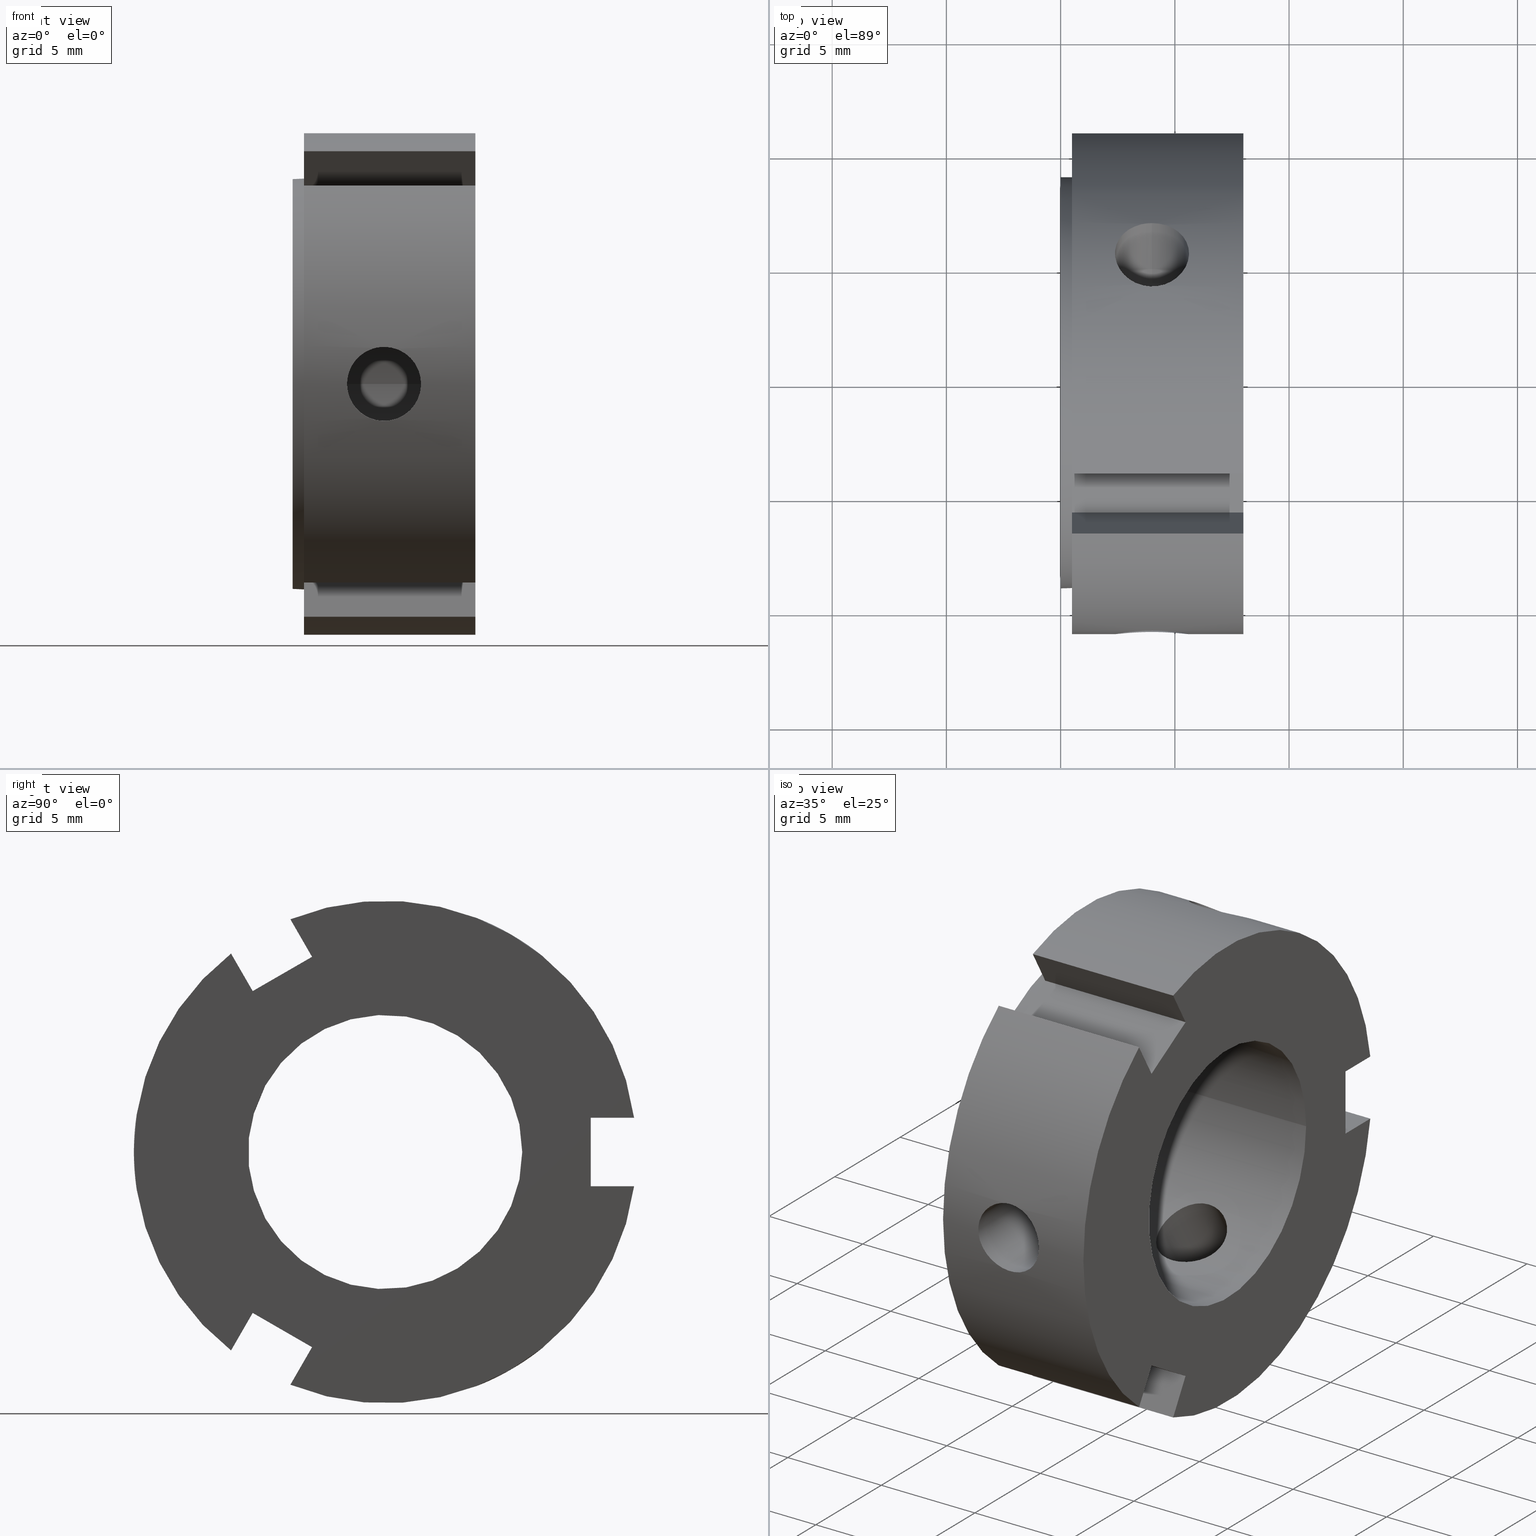
[diagram: canonical four-view strip — front | top / right | iso, engineering-drawing reading convention]
A machine part, canonical four-view strip (front | top / right | iso — engineering-drawing reading convention). The complete STEP part file that produces these views, byte-faithful:
ISO-10303-21;
HEADER;
/****************************************************************
 * Generated by software with PDE/Lib inside                    *
 * PDElib Version v51a, created Thu 01/14/2010                  *
 * ITI Transcendata (http://www.transcendata.com/)              *
 ****************************************************************/
FILE_DESCRIPTION((''),'2;1');
FILE_NAME('\\\\CAD-SVN\\cad-svn\\\X2\628088538AB2\X0\\\FKD\X2\88FD4F5C\X0\SP\\\X2\90E854C130E930A430D630E930EA\X0\\\HP \X2\30A230C330D730C730FC30C87528\X0\CAD\X2\30C730FC30BFFF0867007D42FF09\X0\\\3D data\\ZMT\\FKD ZMT 12.stp','2014-07-16T14:42:57',('fkd-ct1n'),(''),'Autodesk Inventor 2011','Autodesk Inventor 2011','');
FILE_SCHEMA(('AUTOMOTIVE_DESIGN { 1 0 10303 214 1 1 1 1 }'));
ENDSEC;
DATA;
#5=APPLICATION_CONTEXT('automotive design');
#6=APPLICATION_PROTOCOL_DEFINITION('International Standard','automotive_design',2001,#5);
#7=PRODUCT_CONTEXT('',#5,'mechanical');
#8=PRODUCT('FKD ZMT 12','FKD ZMT 12',$,(#7));
#9=PRODUCT_RELATED_PRODUCT_CATEGORY('part',$,(#8));
#10=PRODUCT_DEFINITION_FORMATION('',$,#8);
#11=PRODUCT_DEFINITION_CONTEXT('part definition',#5,'design');
#12=PRODUCT_DEFINITION('',$,#10,#11);
#18=(NAMED_UNIT(*)PLANE_ANGLE_UNIT()SI_UNIT($,.RADIAN.));
#19=DIMENSIONAL_EXPONENTS(0.0,0.0,0.0,0.0,0.0,0.0,0.0);
#20=PLANE_ANGLE_MEASURE_WITH_UNIT(PLANE_ANGLE_MEASURE(0.017453292500000),#18);
#24=(CONVERSION_BASED_UNIT('DEGREE',#20)NAMED_UNIT(#19)PLANE_ANGLE_UNIT());
#28=(NAMED_UNIT(*)SI_UNIT($,.STERADIAN.)SOLID_ANGLE_UNIT());
#32=(LENGTH_UNIT()NAMED_UNIT(*)SI_UNIT(.MILLI.,.METRE.));
#34=UNCERTAINTY_MEASURE_WITH_UNIT(LENGTH_MEASURE(0.010000000000000),#32,'DISTANCE_ACCURACY_VALUE','');
#36=(GEOMETRIC_REPRESENTATION_CONTEXT(3)GLOBAL_UNCERTAINTY_ASSIGNED_CONTEXT((#34))GLOBAL_UNIT_ASSIGNED_CONTEXT((#24,#28,#32))REPRESENTATION_CONTEXT('None','None'));
#37=AXIS2_PLACEMENT_3D('',#38,#39,#40);
#38=CARTESIAN_POINT('',(0.0,0.0,0.0));
#39=DIRECTION('',(0.0,0.0,1.0));
#40=DIRECTION('',(1.0,0.0,0.0));
#41=SHAPE_REPRESENTATION('',(#37),#36);
#42=PRODUCT_DEFINITION_SHAPE('','',#12);
#43=SHAPE_DEFINITION_REPRESENTATION(#42,#41);
#49=(NAMED_UNIT(*)PLANE_ANGLE_UNIT()SI_UNIT($,.RADIAN.));
#50=DIMENSIONAL_EXPONENTS(0.0,0.0,0.0,0.0,0.0,0.0,0.0);
#51=PLANE_ANGLE_MEASURE_WITH_UNIT(PLANE_ANGLE_MEASURE(0.017453292500000),#49);
#55=(CONVERSION_BASED_UNIT('DEGREE',#51)NAMED_UNIT(#50)PLANE_ANGLE_UNIT());
#59=(NAMED_UNIT(*)SI_UNIT($,.STERADIAN.)SOLID_ANGLE_UNIT());
#63=(LENGTH_UNIT()NAMED_UNIT(*)SI_UNIT(.MILLI.,.METRE.));
#65=UNCERTAINTY_MEASURE_WITH_UNIT(LENGTH_MEASURE(0.000001000000000),#63,'DISTANCE_ACCURACY_VALUE','');
#67=(GEOMETRIC_REPRESENTATION_CONTEXT(3)GLOBAL_UNCERTAINTY_ASSIGNED_CONTEXT((#65))GLOBAL_UNIT_ASSIGNED_CONTEXT((#55,#59,#63))REPRESENTATION_CONTEXT('','3D'));
#68=CARTESIAN_POINT('',(7.999999999999996,-5.799038105676662,-7.044228634059944));
#69=DIRECTION('',(0.0,-0.866025403784438,0.500000000000000));
#70=DIRECTION('',(-1.0,0.0,0.0));
#71=AXIS2_PLACEMENT_3D('',#68,#69,#70);
#72=PLANE('',#71);
#73=CARTESIAN_POINT('',(0.499999999999998,-5.799038105676662,-7.044228634059944));
#74=VERTEX_POINT('',#73);
#75=CARTESIAN_POINT('',(0.499999999999998,-6.747661785102503,-8.687293044088433));
#76=VERTEX_POINT('',#75);
#77=CARTESIAN_POINT('',(0.499999999999998,-5.799038105676662,-7.044228634059944));
#78=DIRECTION('',(0.0,-0.500000000000001,-0.866025403784438));
#79=VECTOR('',#78,1.897247358851684);
#80=LINE('',#77,#79);
#81=EDGE_CURVE('',#74,#76,#80,.T.);
#82=ORIENTED_EDGE('',*,*,#81,.F.);
#83=CARTESIAN_POINT('',(7.999999999999996,-5.799038105676662,-7.044228634059944));
#84=VERTEX_POINT('',#83);
#85=CARTESIAN_POINT('',(7.999999999999996,-5.799038105676662,-7.044228634059944));
#86=DIRECTION('',(-1.0,0.0,0.0));
#87=VECTOR('',#86,7.499999999999998);
#88=LINE('',#85,#87);
#89=EDGE_CURVE('',#84,#74,#88,.T.);
#90=ORIENTED_EDGE('',*,*,#89,.F.);
#91=CARTESIAN_POINT('',(7.999999999999996,-6.747661785102503,-8.687293044088431));
#92=VERTEX_POINT('',#91);
#93=CARTESIAN_POINT('',(7.999999999999996,-6.747661785102503,-8.687293044088431));
#94=DIRECTION('',(0.0,0.500000000000000,0.866025403784438));
#95=VECTOR('',#94,1.897247358851682);
#96=LINE('',#93,#95);
#97=EDGE_CURVE('',#92,#84,#96,.T.);
#98=ORIENTED_EDGE('',*,*,#97,.F.);
#99=CARTESIAN_POINT('',(0.499999999999998,-6.747661785102503,-8.687293044088431));
#100=DIRECTION('',(1.0,0.0,0.0));
#101=VECTOR('',#100,7.499999999999998);
#102=LINE('',#99,#101);
#103=EDGE_CURVE('',#76,#92,#102,.T.);
#104=ORIENTED_EDGE('',*,*,#103,.F.);
#105=EDGE_LOOP('',(#82,#90,#98,#104));
#106=FACE_OUTER_BOUND('',#105,.T.);
#107=ADVANCED_FACE('',(#106),#72,.F.);
#108=CARTESIAN_POINT('',(7.999999999999996,-4.200961894323346,-10.276279441628823));
#109=DIRECTION('',(0.0,0.866025403784438,-0.500000000000001));
#110=DIRECTION('',(1.0,0.0,0.0));
#111=AXIS2_PLACEMENT_3D('',#108,#109,#110);
#112=PLANE('',#111);
#113=CARTESIAN_POINT('',(0.499999999999998,-4.149585573749189,-10.187293044088435));
#114=VERTEX_POINT('',#113);
#115=CARTESIAN_POINT('',(0.499999999999998,-3.200961894323347,-8.544228634059948));
#116=VERTEX_POINT('',#115);
#117=CARTESIAN_POINT('',(0.499999999999998,-4.149585573749190,-10.187293044088436));
#118=DIRECTION('',(0.0,0.500000000000000,0.866025403784438));
#119=VECTOR('',#118,1.897247358851683);
#120=LINE('',#117,#119);
#121=EDGE_CURVE('',#114,#116,#120,.T.);
#122=ORIENTED_EDGE('',*,*,#121,.F.);
#123=CARTESIAN_POINT('',(7.999999999999996,-4.149585573749189,-10.187293044088435));
#124=VERTEX_POINT('',#123);
#125=CARTESIAN_POINT('',(7.999999999999996,-4.149585573749187,-10.187293044088433));
#126=DIRECTION('',(-1.0,0.0,0.0));
#127=VECTOR('',#126,7.499999999999998);
#128=LINE('',#125,#127);
#129=EDGE_CURVE('',#124,#114,#128,.T.);
#130=ORIENTED_EDGE('',*,*,#129,.F.);
#131=CARTESIAN_POINT('',(7.999999999999996,-3.200961894323347,-8.544228634059948));
#132=VERTEX_POINT('',#131);
#133=CARTESIAN_POINT('',(7.999999999999996,-3.200961894323347,-8.544228634059950));
#134=DIRECTION('',(0.0,-0.500000000000001,-0.866025403784438));
#135=VECTOR('',#134,1.897247358851682);
#136=LINE('',#133,#135);
#137=EDGE_CURVE('',#132,#124,#136,.T.);
#138=ORIENTED_EDGE('',*,*,#137,.F.);
#139=CARTESIAN_POINT('',(7.999999999999996,-3.200961894323347,-8.544228634059948));
#140=DIRECTION('',(-1.0,0.0,0.0));
#141=VECTOR('',#140,7.499999999999998);
#142=LINE('',#139,#141);
#143=EDGE_CURVE('',#132,#116,#142,.T.);
#144=ORIENTED_EDGE('',*,*,#143,.T.);
#145=EDGE_LOOP('',(#122,#130,#138,#144));
#146=FACE_OUTER_BOUND('',#145,.T.);
#147=ADVANCED_FACE('',(#146),#112,.F.);
#148=CARTESIAN_POINT('',(7.999999999999996,-3.200961894323347,-8.544228634059948));
#149=DIRECTION('',(0.0,0.500000000000001,0.866025403784438));
#150=DIRECTION('',(0.0,-0.866025403784438,0.500000000000000));
#151=AXIS2_PLACEMENT_3D('',#148,#149,#150);
#152=PLANE('',#151);
#153=CARTESIAN_POINT('',(0.499999999999998,-4.500000000000004,-7.794228634059946));
#154=VERTEX_POINT('',#153);
#155=CARTESIAN_POINT('',(0.499999999999998,-3.200961894323350,-8.544228634059950));
#156=DIRECTION('',(0.0,-0.866025403784438,0.500000000000001));
#157=VECTOR('',#156,1.500000000000001);
#158=LINE('',#155,#157);
#159=EDGE_CURVE('',#116,#154,#158,.T.);
#160=ORIENTED_EDGE('',*,*,#159,.F.);
#161=ORIENTED_EDGE('',*,*,#143,.F.);
#162=CARTESIAN_POINT('',(7.999999999999996,-5.799038105676664,-7.044228634059948));
#163=DIRECTION('',(0.0,0.866025403784438,-0.500000000000001));
#164=VECTOR('',#163,3.000000000000000);
#165=LINE('',#162,#164);
#166=EDGE_CURVE('',#84,#132,#165,.T.);
#167=ORIENTED_EDGE('',*,*,#166,.F.);
#168=ORIENTED_EDGE('',*,*,#89,.T.);
#169=CARTESIAN_POINT('',(0.499999999999998,-4.500000000000007,-7.794228634059948));
#170=DIRECTION('',(0.0,-0.866025403784438,0.500000000000000));
#171=VECTOR('',#170,1.499999999999999);
#172=LINE('',#169,#171);
#173=EDGE_CURVE('',#154,#74,#172,.T.);
#174=ORIENTED_EDGE('',*,*,#173,.F.);
#175=EDGE_LOOP('',(#160,#161,#167,#168,#174));
#176=FACE_OUTER_BOUND('',#175,.T.);
#177=ADVANCED_FACE('',(#176),#152,.F.);
#178=CARTESIAN_POINT('',(3.999999999999996,16.027238080021299,27.759990659599517));
#179=DIRECTION('',(0.0,-0.500000000000001,-0.866025403784438));
#180=DIRECTION('',(-1.0,0.0,0.0));
#181=AXIS2_PLACEMENT_3D('',#178,#179,#180);
#182=CYLINDRICAL_SURFACE('',#181,1.621000000000000);
#183=CARTESIAN_POINT('',(3.999999999999996,6.843780281354484,8.611775163143978));
#184=VERTEX_POINT('',#183);
#185=CARTESIAN_POINT('',(3.999999999999996,6.843780281354483,8.611775163143978));
#186=CARTESIAN_POINT('',(4.203857230095092,6.843780281354483,8.611775163143978));
#187=CARTESIAN_POINT('',(4.421096422425316,6.811605609383767,8.637650585633573));
#188=CARTESIAN_POINT('',(4.820387515019100,6.679632714814055,8.740107856688494));
#189=CARTESIAN_POINT('',(5.002465229547891,6.579679271757774,8.816388886074458));
#190=CARTESIAN_POINT('',(5.289972621900516,6.345751955535164,8.986229673803914));
#191=CARTESIAN_POINT('',(5.414677187542505,6.196071175604074,9.091132402150105));
#192=CARTESIAN_POINT('',(5.580199034970113,5.861556254706977,9.310324625808585));
#193=CARTESIAN_POINT('',(5.620999999999996,5.676542674652554,9.424352480894713));
#194=CARTESIAN_POINT('',(5.620999999999996,5.323457325347452,9.628206402362929));
#195=CARTESIAN_POINT('',(5.580199034970113,5.132199516076602,9.731418935192099));
#196=CARTESIAN_POINT('',(5.414677187542505,4.775116021627809,9.911521242804689));
#197=CARTESIAN_POINT('',(5.289972621900514,4.609427203988165,9.988697236510184));
#198=CARTESIAN_POINT('',(5.002465229547890,4.345377109104392,10.106363841133351));
#199=CARTESIAN_POINT('',(4.820387515019100,4.229339078301181,10.154785547322831));
#200=CARTESIAN_POINT('',(4.421096422425315,4.074622031480335,10.217848791103705));
#201=CARTESIAN_POINT('',(4.203857230095093,4.036125922285328,10.232775163143980));
#202=CARTESIAN_POINT('',(3.796142769904900,4.036125922285328,10.232775163143980));
#203=CARTESIAN_POINT('',(3.578903577574677,4.074622031480335,10.217848791103705));
#204=CARTESIAN_POINT('',(3.179612484980892,4.229339078301181,10.154785547322831));
#205=CARTESIAN_POINT('',(2.997534770452102,4.345377109104392,10.106363841133351));
#206=CARTESIAN_POINT('',(2.710027378099477,4.609427203988166,9.988697236510184));
#207=CARTESIAN_POINT('',(2.585322812457488,4.775116021627809,9.911521242804689));
#208=CARTESIAN_POINT('',(2.419800965029880,5.132199516076602,9.731418935192099));
#209=CARTESIAN_POINT('',(2.378999999999996,5.323457325347452,9.628206402362929));
#210=CARTESIAN_POINT('',(2.378999999999996,5.676542674652554,9.424352480894713));
#211=CARTESIAN_POINT('',(2.419800965029880,5.861556254706977,9.310324625808585));
#212=CARTESIAN_POINT('',(2.585322812457487,6.196071175604075,9.091132402150105));
#213=CARTESIAN_POINT('',(2.710027378099476,6.345751955535164,8.986229673803914));
#214=CARTESIAN_POINT('',(2.997534770452100,6.579679271757774,8.816388886074458));
#215=CARTESIAN_POINT('',(3.179612484980892,6.679632714814055,8.740107856688494));
#216=CARTESIAN_POINT('',(3.578903577574677,6.811605609383767,8.637650585633573));
#217=CARTESIAN_POINT('',(3.796142769904900,6.843780281354483,8.611775163143978));
#218=CARTESIAN_POINT('',(3.999999999999995,6.843780281354483,8.611775163143978));
#219=B_SPLINE_CURVE_WITH_KNOTS('',3,(#185,#186,#187,#188,#189,#190,#191,#192,#193,#194,#195,#196,#197,#198,#199,#200,#201,#202,#203,#204,#205,#206,#207,#208,#209,#210,#211,#212,#213,#214,#215,#216,#217,#218),.UNSPECIFIED.,.T.,.U.,(4,2,2,2,2,2,2,2,2,2,2,2,2,2,2,2,4),(0.0,0.061157169028529,0.122314338057058,0.183470514497522,0.244626690937986,0.305782867378451,0.366939043818915,0.428096212847444,0.489253381875973,0.550410550904502,0.611567719933030,0.672723896373495,0.733880072813959,0.795036249254423,0.856192425694888,0.917349594723416,0.978506763751945),.UNSPECIFIED.);
#220=EDGE_CURVE('',#184,#184,#219,.T.);
#221=ORIENTED_EDGE('',*,*,#220,.F.);
#222=EDGE_LOOP('',(#221));
#223=FACE_OUTER_BOUND('',#222,.T.);
#224=CARTESIAN_POINT('',(3.999999999999996,4.292267892099059,4.192426068812130));
#225=VERTEX_POINT('',#224);
#226=CARTESIAN_POINT('',(3.999999999999996,4.292267892099056,4.192426068812130));
#227=CARTESIAN_POINT('',(3.795343162067284,4.292267892099056,4.192426068812130));
#228=CARTESIAN_POINT('',(3.577785041927256,4.262671031748758,4.223382362895078));
#229=CARTESIAN_POINT('',(3.178732228014614,4.140492128349759,4.343230089221864));
#230=CARTESIAN_POINT('',(2.997142959961233,4.047609725213063,4.431499404142869));
#231=CARTESIAN_POINT('',(2.710444476162087,3.827220333200359,4.623170747325942));
#232=CARTESIAN_POINT('',(2.585849816208566,3.684708021319158,4.739533514031053));
#233=CARTESIAN_POINT('',(2.420100173381673,3.359872345713433,4.975088838506332));
#234=CARTESIAN_POINT('',(2.378999999999996,3.177203873530821,5.093843718622166));
#235=CARTESIAN_POINT('',(2.378999999999996,2.822796126469186,5.298461126791092));
#236=CARTESIAN_POINT('',(2.420100173381671,2.628617147374191,5.397279224113808));
#237=CARTESIAN_POINT('',(2.585849816208563,2.262202414579049,5.560817509006207));
#238=CARTESIAN_POINT('',(2.710444476162087,2.090173146617182,5.626055408094820));
#239=CARTESIAN_POINT('',(2.997142959961233,1.813986198236802,5.721082548710895));
#240=CARTESIAN_POINT('',(3.178732228014613,1.691101527572212,5.757386411931321));
#241=CARTESIAN_POINT('',(3.577785041927257,1.526220900287910,5.803272582917986));
#242=CARTESIAN_POINT('',(3.795343162067284,1.484613533029904,5.813426068812132));
#243=CARTESIAN_POINT('',(4.204656837932708,1.484613533029904,5.813426068812132));
#244=CARTESIAN_POINT('',(4.422214958072735,1.526220900287910,5.803272582917986));
#245=CARTESIAN_POINT('',(4.821267771985379,1.691101527572212,5.757386411931321));
#246=CARTESIAN_POINT('',(5.002857040038759,1.813986198236802,5.721082548710895));
#247=CARTESIAN_POINT('',(5.289555523837905,2.090173146617182,5.626055408094821));
#248=CARTESIAN_POINT('',(5.414150183791428,2.262202414579049,5.560817509006207));
#249=CARTESIAN_POINT('',(5.579899826618321,2.628617147374190,5.397279224113808));
#250=CARTESIAN_POINT('',(5.620999999999996,2.822796126469185,5.298461126791092));
#251=CARTESIAN_POINT('',(5.620999999999996,3.177203873530821,5.093843718622166));
#252=CARTESIAN_POINT('',(5.579899826618319,3.359872345713433,4.975088838506333));
#253=CARTESIAN_POINT('',(5.414150183791425,3.684708021319158,4.739533514031053));
#254=CARTESIAN_POINT('',(5.289555523837906,3.827220333200359,4.623170747325942));
#255=CARTESIAN_POINT('',(5.002857040038760,4.047609725213063,4.431499404142869));
#256=CARTESIAN_POINT('',(4.821267771985379,4.140492128349759,4.343230089221864));
#257=CARTESIAN_POINT('',(4.422214958072736,4.262671031748758,4.223382362895078));
#258=CARTESIAN_POINT('',(4.204656837932708,4.292267892099056,4.192426068812130));
#259=CARTESIAN_POINT('',(3.999999999999996,4.292267892099056,4.192426068812130));
#260=B_SPLINE_CURVE_WITH_KNOTS('',3,(#226,#227,#228,#229,#230,#231,#232,#233,#234,#235,#236,#237,#238,#239,#240,#241,#242,#243,#244,#245,#246,#247,#248,#249,#250,#251,#252,#253,#254,#255,#256,#257,#258,#259),.UNSPECIFIED.,.T.,.U.,(4,2,2,2,2,2,2,2,2,2,2,2,2,2,2,2,4),(0.0,0.061397051379813,0.122794102759627,0.184179325210304,0.245564547660981,0.306949770111659,0.368334992562336,0.429732043942149,0.491129095321963,0.552526146701776,0.613923198081590,0.675308420532267,0.736693642982944,0.798078865433622,0.859464087884299,0.920861139264112,0.982258190643926),.UNSPECIFIED.);
#261=EDGE_CURVE('',#225,#225,#260,.T.);
#262=ORIENTED_EDGE('',*,*,#261,.F.);
#263=EDGE_LOOP('',(#262));
#264=FACE_BOUND('',#263,.T.);
#265=ADVANCED_FACE('',(#223,#264),#182,.F.);
#266=CARTESIAN_POINT('',(7.999999999999996,-3.200961894323340,8.544228634059948));
#267=DIRECTION('',(0.0,0.866025403784439,0.500000000000000));
#268=DIRECTION('',(-1.0,0.0,0.0));
#269=AXIS2_PLACEMENT_3D('',#266,#267,#268);
#270=PLANE('',#269);
#271=CARTESIAN_POINT('',(0.499999999999998,-3.200961894323340,8.544228634059948));
#272=VERTEX_POINT('',#271);
#273=CARTESIAN_POINT('',(0.499999999999998,-4.149585573749180,10.187293044088436));
#274=VERTEX_POINT('',#273);
#275=CARTESIAN_POINT('',(0.499999999999998,-3.200961894323341,8.544228634059950));
#276=DIRECTION('',(0.0,-0.500000000000000,0.866025403784438));
#277=VECTOR('',#276,1.897247358851681);
#278=LINE('',#275,#277);
#279=EDGE_CURVE('',#272,#274,#278,.T.);
#280=ORIENTED_EDGE('',*,*,#279,.F.);
#281=CARTESIAN_POINT('',(7.999999999999996,-3.200961894323340,8.544228634059948));
#282=VERTEX_POINT('',#281);
#283=CARTESIAN_POINT('',(7.999999999999996,-3.200961894323340,8.544228634059948));
#284=DIRECTION('',(-1.0,0.0,0.0));
#285=VECTOR('',#284,7.499999999999998);
#286=LINE('',#283,#285);
#287=EDGE_CURVE('',#282,#272,#286,.T.);
#288=ORIENTED_EDGE('',*,*,#287,.F.);
#289=CARTESIAN_POINT('',(7.999999999999996,-4.149585573749180,10.187293044088436));
#290=VERTEX_POINT('',#289);
#291=CARTESIAN_POINT('',(7.999999999999996,-4.149585573749180,10.187293044088435));
#292=DIRECTION('',(0.0,0.500000000000000,-0.866025403784439));
#293=VECTOR('',#292,1.897247358851681);
#294=LINE('',#291,#293);
#295=EDGE_CURVE('',#290,#282,#294,.T.);
#296=ORIENTED_EDGE('',*,*,#295,.F.);
#297=CARTESIAN_POINT('',(0.499999999999998,-4.149585573749180,10.187293044088435));
#298=DIRECTION('',(1.0,0.0,0.0));
#299=VECTOR('',#298,7.499999999999998);
#300=LINE('',#297,#299);
#301=EDGE_CURVE('',#274,#290,#300,.T.);
#302=ORIENTED_EDGE('',*,*,#301,.F.);
#303=EDGE_LOOP('',(#280,#288,#296,#302));
#304=FACE_OUTER_BOUND('',#303,.T.);
#305=ADVANCED_FACE('',(#304),#270,.F.);
#306=CARTESIAN_POINT('',(7.999999999999996,-6.799038105676656,8.776279441628827));
#307=DIRECTION('',(0.0,-0.866025403784439,-0.500000000000000));
#308=DIRECTION('',(1.0,0.0,0.0));
#309=AXIS2_PLACEMENT_3D('',#306,#307,#308);
#310=PLANE('',#309);
#311=CARTESIAN_POINT('',(0.499999999999998,-6.747661785102497,8.687293044088436));
#312=VERTEX_POINT('',#311);
#313=CARTESIAN_POINT('',(0.499999999999998,-5.799038105676656,7.044228634059949));
#314=VERTEX_POINT('',#313);
#315=CARTESIAN_POINT('',(0.499999999999998,-6.747661785102499,8.687293044088438));
#316=DIRECTION('',(0.0,0.500000000000000,-0.866025403784439));
#317=VECTOR('',#316,1.897247358851682);
#318=LINE('',#315,#317);
#319=EDGE_CURVE('',#312,#314,#318,.T.);
#320=ORIENTED_EDGE('',*,*,#319,.F.);
#321=CARTESIAN_POINT('',(7.999999999999996,-6.747661785102497,8.687293044088436));
#322=VERTEX_POINT('',#321);
#323=CARTESIAN_POINT('',(7.999999999999996,-6.747661785102497,8.687293044088435));
#324=DIRECTION('',(-1.0,0.0,0.0));
#325=VECTOR('',#324,7.499999999999998);
#326=LINE('',#323,#325);
#327=EDGE_CURVE('',#322,#312,#326,.T.);
#328=ORIENTED_EDGE('',*,*,#327,.F.);
#329=CARTESIAN_POINT('',(7.999999999999996,-5.799038105676656,7.044228634059949));
#330=VERTEX_POINT('',#329);
#331=CARTESIAN_POINT('',(7.999999999999996,-5.799038105676658,7.044228634059950));
#332=DIRECTION('',(0.0,-0.500000000000000,0.866025403784439));
#333=VECTOR('',#332,1.897247358851680);
#334=LINE('',#331,#333);
#335=EDGE_CURVE('',#330,#322,#334,.T.);
#336=ORIENTED_EDGE('',*,*,#335,.F.);
#337=CARTESIAN_POINT('',(7.999999999999996,-5.799038105676656,7.044228634059949));
#338=DIRECTION('',(-1.0,0.0,0.0));
#339=VECTOR('',#338,7.499999999999998);
#340=LINE('',#337,#339);
#341=EDGE_CURVE('',#330,#314,#340,.T.);
#342=ORIENTED_EDGE('',*,*,#341,.T.);
#343=EDGE_LOOP('',(#320,#328,#336,#342));
#344=FACE_OUTER_BOUND('',#343,.T.);
#345=ADVANCED_FACE('',(#344),#310,.F.);
#346=CARTESIAN_POINT('',(7.999999999999996,-5.799038105676656,7.044228634059949));
#347=DIRECTION('',(0.0,0.500000000000000,-0.866025403784439));
#348=DIRECTION('',(0.0,0.866025403784439,0.500000000000000));
#349=AXIS2_PLACEMENT_3D('',#346,#347,#348);
#350=PLANE('',#349);
#351=CARTESIAN_POINT('',(0.499999999999998,-4.499999999999998,7.794228634059948));
#352=VERTEX_POINT('',#351);
#353=CARTESIAN_POINT('',(0.499999999999999,-5.799038105676658,7.044228634059950));
#354=DIRECTION('',(0.0,0.866025403784439,0.500000000000000));
#355=VECTOR('',#354,1.500000000000000);
#356=LINE('',#353,#355);
#357=EDGE_CURVE('',#314,#352,#356,.T.);
#358=ORIENTED_EDGE('',*,*,#357,.F.);
#359=ORIENTED_EDGE('',*,*,#341,.F.);
#360=CARTESIAN_POINT('',(7.999999999999996,-3.200961894323341,8.544228634059950));
#361=DIRECTION('',(0.0,-0.866025403784439,-0.500000000000000));
#362=VECTOR('',#361,2.999999999999999);
#363=LINE('',#360,#362);
#364=EDGE_CURVE('',#282,#330,#363,.T.);
#365=ORIENTED_EDGE('',*,*,#364,.F.);
#366=ORIENTED_EDGE('',*,*,#287,.T.);
#367=CARTESIAN_POINT('',(0.499999999999999,-4.500000000000000,7.794228634059949));
#368=DIRECTION('',(0.0,0.866025403784439,0.500000000000000));
#369=VECTOR('',#368,1.500000000000001);
#370=LINE('',#367,#369);
#371=EDGE_CURVE('',#352,#272,#370,.T.);
#372=ORIENTED_EDGE('',*,*,#371,.F.);
#373=EDGE_LOOP('',(#358,#359,#365,#366,#372));
#374=FACE_OUTER_BOUND('',#373,.T.);
#375=ADVANCED_FACE('',(#374),#350,.F.);
#376=CARTESIAN_POINT('',(3.999999999999996,16.027238080021277,-27.759990659599527));
#377=DIRECTION('',(0.0,-0.500000000000000,0.866025403784439));
#378=DIRECTION('',(-1.0,0.0,0.0));
#379=AXIS2_PLACEMENT_3D('',#376,#377,#378);
#380=CYLINDRICAL_SURFACE('',#379,1.621000000000000);
#381=CARTESIAN_POINT('',(3.999999999999996,4.036125922285326,-10.232775163143984));
#382=VERTEX_POINT('',#381);
#383=CARTESIAN_POINT('',(3.999999999999995,4.036125922285327,-10.232775163143980));
#384=CARTESIAN_POINT('',(4.203857230095092,4.036125922285327,-10.232775163143980));
#385=CARTESIAN_POINT('',(4.421096422425316,4.074622031480329,-10.217848791103707));
#386=CARTESIAN_POINT('',(4.820387515019101,4.229339078301176,-10.154785547322833));
#387=CARTESIAN_POINT('',(5.002465229547891,4.345377109104388,-10.106363841133351));
#388=CARTESIAN_POINT('',(5.289972621900514,4.609427203988162,-9.988697236510182));
#389=CARTESIAN_POINT('',(5.414677187542505,4.775116021627805,-9.911521242804691));
#390=CARTESIAN_POINT('',(5.580199034970112,5.132199516076598,-9.731418935192103));
#391=CARTESIAN_POINT('',(5.620999999999996,5.323457325347444,-9.628206402362929));
#392=CARTESIAN_POINT('',(5.620999999999996,5.676542674652547,-9.424352480894715));
#393=CARTESIAN_POINT('',(5.580199034970113,5.861556254706970,-9.310324625808589));
#394=CARTESIAN_POINT('',(5.414677187542505,6.196071175604069,-9.091132402150109));
#395=CARTESIAN_POINT('',(5.289972621900514,6.345751955535155,-8.986229673803919));
#396=CARTESIAN_POINT('',(5.002465229547891,6.579679271757765,-8.816388886074464));
#397=CARTESIAN_POINT('',(4.820387515019103,6.679632714814047,-8.740107856688500));
#398=CARTESIAN_POINT('',(4.421096422425317,6.811605609383759,-8.637650585633578));
#399=CARTESIAN_POINT('',(4.203857230095093,6.843780281354476,-8.611775163143983));
#400=CARTESIAN_POINT('',(3.796142769904900,6.843780281354476,-8.611775163143983));
#401=CARTESIAN_POINT('',(3.578903577574675,6.811605609383759,-8.637650585633578));
#402=CARTESIAN_POINT('',(3.179612484980888,6.679632714814047,-8.740107856688500));
#403=CARTESIAN_POINT('',(2.997534770452099,6.579679271757765,-8.816388886074464));
#404=CARTESIAN_POINT('',(2.710027378099476,6.345751955535155,-8.986229673803919));
#405=CARTESIAN_POINT('',(2.585322812457487,6.196071175604068,-9.091132402150109));
#406=CARTESIAN_POINT('',(2.419800965029880,5.861556254706970,-9.310324625808589));
#407=CARTESIAN_POINT('',(2.378999999999996,5.676542674652547,-9.424352480894715));
#408=CARTESIAN_POINT('',(2.378999999999996,5.323457325347444,-9.628206402362929));
#409=CARTESIAN_POINT('',(2.419800965029880,5.132199516076598,-9.731418935192103));
#410=CARTESIAN_POINT('',(2.585322812457487,4.775116021627805,-9.911521242804691));
#411=CARTESIAN_POINT('',(2.710027378099477,4.609427203988162,-9.988697236510182));
#412=CARTESIAN_POINT('',(2.997534770452100,4.345377109104388,-10.106363841133351));
#413=CARTESIAN_POINT('',(3.179612484980890,4.229339078301176,-10.154785547322833));
#414=CARTESIAN_POINT('',(3.578903577574675,4.074622031480329,-10.217848791103707));
#415=CARTESIAN_POINT('',(3.796142769904899,4.036125922285326,-10.232775163143980));
#416=CARTESIAN_POINT('',(3.999999999999995,4.036125922285326,-10.232775163143980));
#417=B_SPLINE_CURVE_WITH_KNOTS('',3,(#383,#384,#385,#386,#387,#388,#389,#390,#391,#392,#393,#394,#395,#396,#397,#398,#399,#400,#401,#402,#403,#404,#405,#406,#407,#408,#409,#410,#411,#412,#413,#414,#415,#416),.UNSPECIFIED.,.T.,.U.,(4,2,2,2,2,2,2,2,2,2,2,2,2,2,2,2,4),(0.0,0.061157169028529,0.122314338057058,0.183470514497522,0.244626690937986,0.305782867378450,0.366939043818914,0.428096212847443,0.489253381875972,0.550410550904501,0.611567719933030,0.672723896373494,0.733880072813958,0.795036249254422,0.856192425694886,0.917349594723415,0.978506763751944),.UNSPECIFIED.);
#418=EDGE_CURVE('',#382,#382,#417,.T.);
#419=ORIENTED_EDGE('',*,*,#418,.F.);
#420=EDGE_LOOP('',(#419));
#421=FACE_OUTER_BOUND('',#420,.T.);
#422=CARTESIAN_POINT('',(3.999999999999996,1.484613533029904,-5.813426068812132));
#423=VERTEX_POINT('',#422);
#424=CARTESIAN_POINT('',(3.999999999999996,1.484613533029904,-5.813426068812132));
#425=CARTESIAN_POINT('',(3.795343162067284,1.484613533029904,-5.813426068812132));
#426=CARTESIAN_POINT('',(3.577785041927255,1.526220900287908,-5.803272582917986));
#427=CARTESIAN_POINT('',(3.178732228014612,1.691101527572211,-5.757386411931321));
#428=CARTESIAN_POINT('',(2.997142959961232,1.813986198236801,-5.721082548710896));
#429=CARTESIAN_POINT('',(2.710444476162087,2.090173146617180,-5.626055408094822));
#430=CARTESIAN_POINT('',(2.585849816208563,2.262202414579048,-5.560817509006208));
#431=CARTESIAN_POINT('',(2.420100173381671,2.628617147374188,-5.397279224113809));
#432=CARTESIAN_POINT('',(2.378999999999996,2.822796126469180,-5.298461126791093));
#433=CARTESIAN_POINT('',(2.378999999999996,3.177203873530814,-5.093843718622169));
#434=CARTESIAN_POINT('',(2.420100173381670,3.359872345713427,-4.975088838506338));
#435=CARTESIAN_POINT('',(2.585849816208563,3.684708021319151,-4.739533514031058));
#436=CARTESIAN_POINT('',(2.710444476162087,3.827220333200351,-4.623170747325948));
#437=CARTESIAN_POINT('',(2.997142959961232,4.047609725213056,-4.431499404142876));
#438=CARTESIAN_POINT('',(3.178732228014609,4.140492128349757,-4.343230089221867));
#439=CARTESIAN_POINT('',(3.577785041927251,4.262671031748757,-4.223382362895080));
#440=CARTESIAN_POINT('',(3.795343162067284,4.292267892099052,-4.192426068812133));
#441=CARTESIAN_POINT('',(4.204656837932708,4.292267892099052,-4.192426068812133));
#442=CARTESIAN_POINT('',(4.422214958072740,4.262671031748757,-4.223382362895080));
#443=CARTESIAN_POINT('',(4.821267771985383,4.140492128349757,-4.343230089221867));
#444=CARTESIAN_POINT('',(5.002857040038760,4.047609725213056,-4.431499404142876));
#445=CARTESIAN_POINT('',(5.289555523837905,3.827220333200351,-4.623170747325948));
#446=CARTESIAN_POINT('',(5.414150183791429,3.684708021319152,-4.739533514031058));
#447=CARTESIAN_POINT('',(5.579899826618321,3.359872345713427,-4.975088838506338));
#448=CARTESIAN_POINT('',(5.620999999999996,3.177203873530814,-5.093843718622169));
#449=CARTESIAN_POINT('',(5.620999999999996,2.822796126469180,-5.298461126791093));
#450=CARTESIAN_POINT('',(5.579899826618321,2.628617147374187,-5.397279224113811));
#451=CARTESIAN_POINT('',(5.414150183791428,2.262202414579046,-5.560817509006211));
#452=CARTESIAN_POINT('',(5.289555523837905,2.090173146617180,-5.626055408094823));
#453=CARTESIAN_POINT('',(5.002857040038760,1.813986198236801,-5.721082548710896));
#454=CARTESIAN_POINT('',(4.821267771985379,1.691101527572211,-5.757386411931321));
#455=CARTESIAN_POINT('',(4.422214958072737,1.526220900287908,-5.803272582917986));
#456=CARTESIAN_POINT('',(4.204656837932708,1.484613533029904,-5.813426068812132));
#457=CARTESIAN_POINT('',(3.999999999999996,1.484613533029904,-5.813426068812132));
#458=B_SPLINE_CURVE_WITH_KNOTS('',3,(#424,#425,#426,#427,#428,#429,#430,#431,#432,#433,#434,#435,#436,#437,#438,#439,#440,#441,#442,#443,#444,#445,#446,#447,#448,#449,#450,#451,#452,#453,#454,#455,#456,#457),.UNSPECIFIED.,.T.,.U.,(4,2,2,2,2,2,2,2,2,2,2,2,2,2,2,2,4),(0.0,0.061397051379814,0.122794102759627,0.184179325210304,0.245564547660981,0.306949770111658,0.368334992562335,0.429732043942149,0.491129095321962,0.552526146701776,0.613923198081589,0.675308420532266,0.736693642982943,0.798078865433620,0.859464087884297,0.920861139264111,0.982258190643924),.UNSPECIFIED.);
#459=EDGE_CURVE('',#423,#423,#458,.T.);
#460=ORIENTED_EDGE('',*,*,#459,.F.);
#461=EDGE_LOOP('',(#460));
#462=FACE_BOUND('',#461,.T.);
#463=ADVANCED_FACE('',(#421,#462),#380,.F.);
#464=CARTESIAN_POINT('',(0.499999999999998,9.999999999999998,0.0));
#465=DIRECTION('',(-1.0,0.0,0.0));
#466=DIRECTION('',(0.0,0.0,1.0));
#467=AXIS2_PLACEMENT_3D('',#464,#465,#466);
#468=PLANE('',#467);
#469=ORIENTED_EDGE('',*,*,#371,.T.);
#470=ORIENTED_EDGE('',*,*,#279,.T.);
#471=CARTESIAN_POINT('',(0.499999999999998,10.897247358851681,1.500000000000000));
#472=VERTEX_POINT('',#471);
#473=CARTESIAN_POINT('',(0.499999999999998,0.0,0.0));
#474=DIRECTION('',(1.0,0.0,0.0));
#475=DIRECTION('',(0.0,1.0,0.0));
#476=AXIS2_PLACEMENT_3D('',#473,#474,#475);
#477=CIRCLE('',#476,10.999999999999996);
#478=EDGE_CURVE('',#472,#274,#477,.T.);
#479=ORIENTED_EDGE('',*,*,#478,.F.);
#480=CARTESIAN_POINT('',(0.499999999999998,9.0,1.500000000000000));
#481=VERTEX_POINT('',#480);
#482=CARTESIAN_POINT('',(0.499999999999998,10.897247358851681,1.500000000000000));
#483=DIRECTION('',(0.0,-1.0,0.0));
#484=VECTOR('',#483,1.897247358851681);
#485=LINE('',#482,#484);
#486=EDGE_CURVE('',#472,#481,#485,.T.);
#487=ORIENTED_EDGE('',*,*,#486,.T.);
#488=CARTESIAN_POINT('',(0.499999999999998,8.999999999999998,0.0));
#489=VERTEX_POINT('',#488);
#490=CARTESIAN_POINT('',(0.499999999999998,9.0,1.500000000000000));
#491=DIRECTION('',(0.0,0.0,-1.0));
#492=VECTOR('',#491,1.500000000000000);
#493=LINE('',#490,#492);
#494=EDGE_CURVE('',#481,#489,#493,.T.);
#495=ORIENTED_EDGE('',*,*,#494,.T.);
#496=CARTESIAN_POINT('',(0.499999999999998,0.0,0.0));
#497=DIRECTION('',(1.0,0.0,0.0));
#498=DIRECTION('',(0.0,1.0,0.0));
#499=AXIS2_PLACEMENT_3D('',#496,#497,#498);
#500=CIRCLE('',#499,8.999999999999998);
#501=EDGE_CURVE('',#489,#352,#500,.T.);
#502=ORIENTED_EDGE('',*,*,#501,.T.);
#503=EDGE_LOOP('',(#469,#470,#479,#487,#495,#502));
#504=FACE_OUTER_BOUND('',#503,.T.);
#505=ADVANCED_FACE('',(#504),#468,.T.);
#506=CARTESIAN_POINT('',(0.499999999999998,9.999999999999998,0.0));
#507=DIRECTION('',(-1.0,0.0,0.0));
#508=DIRECTION('',(0.0,0.0,1.0));
#509=AXIS2_PLACEMENT_3D('',#506,#507,#508);
#510=PLANE('',#509);
#511=ORIENTED_EDGE('',*,*,#173,.T.);
#512=ORIENTED_EDGE('',*,*,#81,.T.);
#513=CARTESIAN_POINT('',(0.499999999999998,0.0,0.0));
#514=DIRECTION('',(1.0,0.0,0.0));
#515=DIRECTION('',(0.0,1.0,0.0));
#516=AXIS2_PLACEMENT_3D('',#513,#514,#515);
#517=CIRCLE('',#516,10.999999999999996);
#518=EDGE_CURVE('',#312,#76,#517,.T.);
#519=ORIENTED_EDGE('',*,*,#518,.F.);
#520=ORIENTED_EDGE('',*,*,#319,.T.);
#521=ORIENTED_EDGE('',*,*,#357,.T.);
#522=CARTESIAN_POINT('',(0.499999999999998,0.0,0.0));
#523=DIRECTION('',(1.0,0.0,0.0));
#524=DIRECTION('',(0.0,1.0,0.0));
#525=AXIS2_PLACEMENT_3D('',#522,#523,#524);
#526=CIRCLE('',#525,8.999999999999998);
#527=EDGE_CURVE('',#352,#154,#526,.T.);
#528=ORIENTED_EDGE('',*,*,#527,.T.);
#529=EDGE_LOOP('',(#511,#512,#519,#520,#521,#528));
#530=FACE_OUTER_BOUND('',#529,.T.);
#531=ADVANCED_FACE('',(#530),#510,.T.);
#532=CARTESIAN_POINT('',(7.999999999999996,8.500000000000000,0.0));
#533=DIRECTION('',(1.0,0.0,0.0));
#534=DIRECTION('',(0.0,0.0,-1.0));
#535=AXIS2_PLACEMENT_3D('',#532,#533,#534);
#536=PLANE('',#535);
#537=ORIENTED_EDGE('',*,*,#97,.T.);
#538=ORIENTED_EDGE('',*,*,#166,.T.);
#539=ORIENTED_EDGE('',*,*,#137,.T.);
#540=CARTESIAN_POINT('',(7.999999999999996,10.897247358851681,-1.500000000000000));
#541=VERTEX_POINT('',#540);
#542=CARTESIAN_POINT('',(7.999999999999996,0.0,0.0));
#543=DIRECTION('',(1.0,0.0,0.0));
#544=DIRECTION('',(0.0,1.0,0.0));
#545=AXIS2_PLACEMENT_3D('',#542,#543,#544);
#546=CIRCLE('',#545,10.999999999999998);
#547=EDGE_CURVE('',#124,#541,#546,.T.);
#548=ORIENTED_EDGE('',*,*,#547,.T.);
#549=CARTESIAN_POINT('',(7.999999999999996,9.0,-1.500000000000000));
#550=VERTEX_POINT('',#549);
#551=CARTESIAN_POINT('',(7.999999999999996,10.897247358851681,-1.500000000000000));
#552=DIRECTION('',(0.0,-1.0,0.0));
#553=VECTOR('',#552,1.897247358851681);
#554=LINE('',#551,#553);
#555=EDGE_CURVE('',#541,#550,#554,.T.);
#556=ORIENTED_EDGE('',*,*,#555,.T.);
#557=CARTESIAN_POINT('',(7.999999999999996,9.0,1.500000000000000));
#558=VERTEX_POINT('',#557);
#559=CARTESIAN_POINT('',(7.999999999999996,9.0,-1.500000000000000));
#560=DIRECTION('',(0.0,0.0,1.0));
#561=VECTOR('',#560,3.000000000000001);
#562=LINE('',#559,#561);
#563=EDGE_CURVE('',#550,#558,#562,.T.);
#564=ORIENTED_EDGE('',*,*,#563,.T.);
#565=CARTESIAN_POINT('',(7.999999999999996,10.897247358851681,1.500000000000000));
#566=VERTEX_POINT('',#565);
#567=CARTESIAN_POINT('',(7.999999999999996,8.999999999999998,1.500000000000000));
#568=DIRECTION('',(0.0,1.0,0.0));
#569=VECTOR('',#568,1.897247358851681);
#570=LINE('',#567,#569);
#571=EDGE_CURVE('',#558,#566,#570,.T.);
#572=ORIENTED_EDGE('',*,*,#571,.T.);
#573=CARTESIAN_POINT('',(7.999999999999996,0.0,0.0));
#574=DIRECTION('',(1.0,0.0,0.0));
#575=DIRECTION('',(0.0,1.0,0.0));
#576=AXIS2_PLACEMENT_3D('',#573,#574,#575);
#577=CIRCLE('',#576,10.999999999999998);
#578=EDGE_CURVE('',#566,#290,#577,.T.);
#579=ORIENTED_EDGE('',*,*,#578,.T.);
#580=ORIENTED_EDGE('',*,*,#295,.T.);
#581=ORIENTED_EDGE('',*,*,#364,.T.);
#582=ORIENTED_EDGE('',*,*,#335,.T.);
#583=CARTESIAN_POINT('',(7.999999999999996,0.0,0.0));
#584=DIRECTION('',(1.0,0.0,0.0));
#585=DIRECTION('',(0.0,1.0,0.0));
#586=AXIS2_PLACEMENT_3D('',#583,#584,#585);
#587=CIRCLE('',#586,10.999999999999998);
#588=EDGE_CURVE('',#322,#92,#587,.T.);
#589=ORIENTED_EDGE('',*,*,#588,.T.);
#590=EDGE_LOOP('',(#537,#538,#539,#548,#556,#564,#572,#579,#580,#581,#582,#589));
#591=FACE_OUTER_BOUND('',#590,.T.);
#592=CARTESIAN_POINT('',(7.999999999999997,6.000000000000001,0.0));
#593=VERTEX_POINT('',#592);
#594=CARTESIAN_POINT('',(7.999999999999997,0.0,0.0));
#595=DIRECTION('',(1.0,0.0,0.0));
#596=DIRECTION('',(0.0,1.0,0.0));
#597=AXIS2_PLACEMENT_3D('',#594,#595,#596);
#598=CIRCLE('',#597,6.000000000000001);
#599=EDGE_CURVE('',#593,#593,#598,.T.);
#600=ORIENTED_EDGE('',*,*,#599,.F.);
#601=EDGE_LOOP('',(#600));
#602=FACE_BOUND('',#601,.T.);
#603=ADVANCED_FACE('',(#591,#602),#536,.T.);
#604=CARTESIAN_POINT('',(4.249999999999997,0.0,0.0));
#605=DIRECTION('',(1.0,0.0,0.0));
#606=DIRECTION('',(0.0,1.0,0.0));
#607=AXIS2_PLACEMENT_3D('',#604,#605,#606);
#608=CYLINDRICAL_SURFACE('',#607,10.999999999999996);
#609=ORIENTED_EDGE('',*,*,#301,.T.);
#610=ORIENTED_EDGE('',*,*,#578,.F.);
#611=CARTESIAN_POINT('',(7.999999999999996,10.897247358851681,1.500000000000000));
#612=DIRECTION('',(-1.0,0.0,0.0));
#613=VECTOR('',#612,7.499999999999998);
#614=LINE('',#611,#613);
#615=EDGE_CURVE('',#566,#472,#614,.T.);
#616=ORIENTED_EDGE('',*,*,#615,.T.);
#617=ORIENTED_EDGE('',*,*,#478,.T.);
#618=EDGE_LOOP('',(#609,#610,#616,#617));
#619=FACE_OUTER_BOUND('',#618,.T.);
#620=ORIENTED_EDGE('',*,*,#220,.T.);
#621=EDGE_LOOP('',(#620));
#622=FACE_BOUND('',#621,.T.);
#623=ADVANCED_FACE('',(#619,#622),#608,.T.);
#624=CARTESIAN_POINT('',(4.249999999999997,0.0,0.0));
#625=DIRECTION('',(1.0,0.0,0.0));
#626=DIRECTION('',(0.0,1.0,0.0));
#627=AXIS2_PLACEMENT_3D('',#624,#625,#626);
#628=CYLINDRICAL_SURFACE('',#627,10.999999999999996);
#629=ORIENTED_EDGE('',*,*,#129,.T.);
#630=CARTESIAN_POINT('',(0.499999999999998,10.897247358851681,-1.500000000000000));
#631=VERTEX_POINT('',#630);
#632=CARTESIAN_POINT('',(0.499999999999998,0.0,0.0));
#633=DIRECTION('',(1.0,0.0,0.0));
#634=DIRECTION('',(0.0,1.0,0.0));
#635=AXIS2_PLACEMENT_3D('',#632,#633,#634);
#636=CIRCLE('',#635,10.999999999999996);
#637=EDGE_CURVE('',#114,#631,#636,.T.);
#638=ORIENTED_EDGE('',*,*,#637,.T.);
#639=CARTESIAN_POINT('',(0.499999999999998,10.897247358851681,-1.500000000000000));
#640=DIRECTION('',(1.0,0.0,0.0));
#641=VECTOR('',#640,7.499999999999998);
#642=LINE('',#639,#641);
#643=EDGE_CURVE('',#631,#541,#642,.T.);
#644=ORIENTED_EDGE('',*,*,#643,.T.);
#645=ORIENTED_EDGE('',*,*,#547,.F.);
#646=EDGE_LOOP('',(#629,#638,#644,#645));
#647=FACE_OUTER_BOUND('',#646,.T.);
#648=ORIENTED_EDGE('',*,*,#418,.T.);
#649=EDGE_LOOP('',(#648));
#650=FACE_BOUND('',#649,.T.);
#651=ADVANCED_FACE('',(#647,#650),#628,.T.);
#652=CARTESIAN_POINT('',(4.249999999999997,0.0,0.0));
#653=DIRECTION('',(1.0,0.0,0.0));
#654=DIRECTION('',(0.0,1.0,0.0));
#655=AXIS2_PLACEMENT_3D('',#652,#653,#654);
#656=CYLINDRICAL_SURFACE('',#655,10.999999999999996);
#657=ORIENTED_EDGE('',*,*,#103,.T.);
#658=ORIENTED_EDGE('',*,*,#588,.F.);
#659=ORIENTED_EDGE('',*,*,#327,.T.);
#660=ORIENTED_EDGE('',*,*,#518,.T.);
#661=EDGE_LOOP('',(#657,#658,#659,#660));
#662=FACE_OUTER_BOUND('',#661,.T.);
#663=CARTESIAN_POINT('',(3.999999999999996,-10.879906203639806,1.621000000000000));
#664=VERTEX_POINT('',#663);
#665=CARTESIAN_POINT('',(3.999999999999995,-10.879906203639806,1.621000000000000));
#666=CARTESIAN_POINT('',(4.203857230095091,-10.879906203639806,1.621000000000000));
#667=CARTESIAN_POINT('',(4.421096422425316,-10.886227640864092,1.580198205470131));
#668=CARTESIAN_POINT('',(4.820387515019101,-10.908971793115224,1.414677690634334));
#669=CARTESIAN_POINT('',(5.002465229547891,-10.925056380862157,1.289974955058892));
#670=CARTESIAN_POINT('',(5.289972621900515,-10.955179159523320,1.002467562706269));
#671=CARTESIAN_POINT('',(5.414677187542505,-10.971187197231876,0.820388840654583));
#672=CARTESIAN_POINT('',(5.580199034970113,-10.993755770783570,0.421094309383514));
#673=CARTESIAN_POINT('',(5.620999999999996,-10.999999999999996,0.203853921468214));
#674=CARTESIAN_POINT('',(5.620999999999996,-10.999999999999996,-0.203853921468214));
#675=CARTESIAN_POINT('',(5.580199034970113,-10.993755770783570,-0.421094309383514));
#676=CARTESIAN_POINT('',(5.414677187542505,-10.971187197231876,-0.820388840654583));
#677=CARTESIAN_POINT('',(5.289972621900515,-10.955179159523320,-1.002467562706268));
#678=CARTESIAN_POINT('',(5.002465229547891,-10.925056380862157,-1.289974955058892));
#679=CARTESIAN_POINT('',(4.820387515019101,-10.908971793115224,-1.414677690634334));
#680=CARTESIAN_POINT('',(4.421096422425316,-10.886227640864092,-1.580198205470131));
#681=CARTESIAN_POINT('',(4.203857230095092,-10.879906203639806,-1.621000000000000));
#682=CARTESIAN_POINT('',(3.796142769904900,-10.879906203639806,-1.621000000000000));
#683=CARTESIAN_POINT('',(3.578903577574676,-10.886227640864092,-1.580198205470131));
#684=CARTESIAN_POINT('',(3.179612484980891,-10.908971793115224,-1.414677690634334));
#685=CARTESIAN_POINT('',(2.997534770452102,-10.925056380862157,-1.289974955058892));
#686=CARTESIAN_POINT('',(2.710027378099478,-10.955179159523320,-1.002467562706269));
#687=CARTESIAN_POINT('',(2.585322812457488,-10.971187197231876,-0.820388840654583));
#688=CARTESIAN_POINT('',(2.419800965029880,-10.993755770783570,-0.421094309383514));
#689=CARTESIAN_POINT('',(2.378999999999996,-10.999999999999996,-0.203853921468214));
#690=CARTESIAN_POINT('',(2.378999999999996,-10.999999999999996,0.203853921468214));
#691=CARTESIAN_POINT('',(2.419800965029880,-10.993755770783570,0.421094309383514));
#692=CARTESIAN_POINT('',(2.585322812457487,-10.971187197231876,0.820388840654582));
#693=CARTESIAN_POINT('',(2.710027378099476,-10.955179159523320,1.002467562706268));
#694=CARTESIAN_POINT('',(2.997534770452100,-10.925056380862157,1.289974955058892));
#695=CARTESIAN_POINT('',(3.179612484980891,-10.908971793115224,1.414677690634334));
#696=CARTESIAN_POINT('',(3.578903577574676,-10.886227640864092,1.580198205470131));
#697=CARTESIAN_POINT('',(3.796142769904900,-10.879906203639806,1.621000000000000));
#698=CARTESIAN_POINT('',(3.999999999999995,-10.879906203639806,1.621000000000000));
#699=B_SPLINE_CURVE_WITH_KNOTS('',3,(#665,#666,#667,#668,#669,#670,#671,#672,#673,#674,#675,#676,#677,#678,#679,#680,#681,#682,#683,#684,#685,#686,#687,#688,#689,#690,#691,#692,#693,#694,#695,#696,#697,#698),.UNSPECIFIED.,.T.,.U.,(4,2,2,2,2,2,2,2,2,2,2,2,2,2,2,2,4),(0.0,0.061157169028529,0.122314338057058,0.183470514497522,0.244626690937986,0.305782867378450,0.366939043818915,0.428096212847443,0.489253381875972,0.550410550904501,0.611567719933030,0.672723896373494,0.733880072813959,0.795036249254423,0.856192425694887,0.917349594723416,0.978506763751945),.UNSPECIFIED.);
#700=EDGE_CURVE('',#664,#664,#699,.T.);
#701=ORIENTED_EDGE('',*,*,#700,.T.);
#702=EDGE_LOOP('',(#701));
#703=FACE_BOUND('',#702,.T.);
#704=ADVANCED_FACE('',(#662,#703),#656,.T.);
#705=CARTESIAN_POINT('',(3.999999999999996,-32.054476160042562,0.0));
#706=DIRECTION('',(0.0,1.0,0.0));
#707=DIRECTION('',(-1.0,0.0,0.0));
#708=AXIS2_PLACEMENT_3D('',#705,#706,#707);
#709=CYLINDRICAL_SURFACE('',#708,1.621000000000000);
#710=ORIENTED_EDGE('',*,*,#700,.F.);
#711=EDGE_LOOP('',(#710));
#712=FACE_OUTER_BOUND('',#711,.T.);
#713=CARTESIAN_POINT('',(3.999999999999996,-5.776881425128960,1.621000000000000));
#714=VERTEX_POINT('',#713);
#715=CARTESIAN_POINT('',(3.999999999999996,-5.776881425128960,1.621000000000000));
#716=CARTESIAN_POINT('',(3.795343162067284,-5.776881425128960,1.621000000000000));
#717=CARTESIAN_POINT('',(3.577785041927255,-5.788891932036665,1.579890220022907));
#718=CARTESIAN_POINT('',(3.178732228014611,-5.831593655921968,1.414156322709456));
#719=CARTESIAN_POINT('',(2.997142959961233,-5.861595923449862,1.289583144568024));
#720=CARTESIAN_POINT('',(2.710444476162086,-5.917393479817534,1.002884660768878));
#721=CARTESIAN_POINT('',(2.585849816208564,-5.946910435898202,0.821283994975152));
#722=CARTESIAN_POINT('',(2.420100173381671,-5.988489493087617,0.422190385607473));
#723=CARTESIAN_POINT('',(2.378999999999996,-6.000000000000001,0.204617408168924));
#724=CARTESIAN_POINT('',(2.378999999999996,-6.000000000000001,-0.204617408168924));
#725=CARTESIAN_POINT('',(2.420100173381671,-5.988489493087617,-0.422190385607474));
#726=CARTESIAN_POINT('',(2.585849816208564,-5.946910435898202,-0.821283994975152));
#727=CARTESIAN_POINT('',(2.710444476162086,-5.917393479817536,-1.002884660768878));
#728=CARTESIAN_POINT('',(2.997142959961232,-5.861595923449862,-1.289583144568024));
#729=CARTESIAN_POINT('',(3.178732228014611,-5.831593655921968,-1.414156322709455));
#730=CARTESIAN_POINT('',(3.577785041927254,-5.788891932036665,-1.579890220022908));
#731=CARTESIAN_POINT('',(3.795343162067284,-5.776881425128960,-1.621000000000000));
#732=CARTESIAN_POINT('',(4.204656837932708,-5.776881425128960,-1.621000000000000));
#733=CARTESIAN_POINT('',(4.422214958072736,-5.788891932036665,-1.579890220022907));
#734=CARTESIAN_POINT('',(4.821267771985379,-5.831593655921968,-1.414156322709456));
#735=CARTESIAN_POINT('',(5.002857040038760,-5.861595923449862,-1.289583144568025));
#736=CARTESIAN_POINT('',(5.289555523837906,-5.917393479817536,-1.002884660768878));
#737=CARTESIAN_POINT('',(5.414150183791428,-5.946910435898202,-0.821283994975152));
#738=CARTESIAN_POINT('',(5.579899826618321,-5.988489493087617,-0.422190385607473));
#739=CARTESIAN_POINT('',(5.620999999999996,-6.000000000000001,-0.204617408168924));
#740=CARTESIAN_POINT('',(5.620999999999996,-6.000000000000001,0.204617408168924));
#741=CARTESIAN_POINT('',(5.579899826618321,-5.988489493087617,0.422190385607473));
#742=CARTESIAN_POINT('',(5.414150183791428,-5.946910435898202,0.821283994975152));
#743=CARTESIAN_POINT('',(5.289555523837906,-5.917393479817536,1.002884660768878));
#744=CARTESIAN_POINT('',(5.002857040038760,-5.861595923449862,1.289583144568024));
#745=CARTESIAN_POINT('',(4.821267771985380,-5.831593655921968,1.414156322709456));
#746=CARTESIAN_POINT('',(4.422214958072736,-5.788891932036665,1.579890220022907));
#747=CARTESIAN_POINT('',(4.204656837932707,-5.776881425128960,1.621000000000000));
#748=CARTESIAN_POINT('',(3.999999999999995,-5.776881425128960,1.621000000000000));
#749=B_SPLINE_CURVE_WITH_KNOTS('',3,(#715,#716,#717,#718,#719,#720,#721,#722,#723,#724,#725,#726,#727,#728,#729,#730,#731,#732,#733,#734,#735,#736,#737,#738,#739,#740,#741,#742,#743,#744,#745,#746,#747,#748),.UNSPECIFIED.,.T.,.U.,(4,2,2,2,2,2,2,2,2,2,2,2,2,2,2,2,4),(0.0,0.061397051379814,0.122794102759627,0.184179325210304,0.245564547660981,0.306949770111658,0.368334992562336,0.429732043942149,0.491129095321963,0.552526146701776,0.613923198081590,0.675308420532267,0.736693642982944,0.798078865433621,0.859464087884298,0.920861139264112,0.982258190643925),.UNSPECIFIED.);
#750=EDGE_CURVE('',#714,#714,#749,.T.);
#751=ORIENTED_EDGE('',*,*,#750,.F.);
#752=EDGE_LOOP('',(#751));
#753=FACE_BOUND('',#752,.T.);
#754=ADVANCED_FACE('',(#712,#753),#709,.F.);
#755=CARTESIAN_POINT('',(7.999999999999996,9.0,-1.500000000000000));
#756=DIRECTION('',(0.0,0.0,-1.0));
#757=DIRECTION('',(-1.0,0.0,0.0));
#758=AXIS2_PLACEMENT_3D('',#755,#756,#757);
#759=PLANE('',#758);
#760=CARTESIAN_POINT('',(0.499999999999998,9.0,-1.500000000000000));
#761=VERTEX_POINT('',#760);
#762=CARTESIAN_POINT('',(0.499999999999998,8.999999999999998,-1.500000000000000));
#763=DIRECTION('',(0.0,1.0,0.0));
#764=VECTOR('',#763,1.897247358851683);
#765=LINE('',#762,#764);
#766=EDGE_CURVE('',#761,#631,#765,.T.);
#767=ORIENTED_EDGE('',*,*,#766,.F.);
#768=CARTESIAN_POINT('',(7.999999999999996,9.0,-1.500000000000000));
#769=DIRECTION('',(-1.0,0.0,0.0));
#770=VECTOR('',#769,7.499999999999998);
#771=LINE('',#768,#770);
#772=EDGE_CURVE('',#550,#761,#771,.T.);
#773=ORIENTED_EDGE('',*,*,#772,.F.);
#774=ORIENTED_EDGE('',*,*,#555,.F.);
#775=ORIENTED_EDGE('',*,*,#643,.F.);
#776=EDGE_LOOP('',(#767,#773,#774,#775));
#777=FACE_OUTER_BOUND('',#776,.T.);
#778=ADVANCED_FACE('',(#777),#759,.F.);
#779=CARTESIAN_POINT('',(7.999999999999996,10.999999999999998,1.500000000000000));
#780=DIRECTION('',(0.0,0.0,1.0));
#781=DIRECTION('',(1.0,0.0,0.0));
#782=AXIS2_PLACEMENT_3D('',#779,#780,#781);
#783=PLANE('',#782);
#784=ORIENTED_EDGE('',*,*,#486,.F.);
#785=ORIENTED_EDGE('',*,*,#615,.F.);
#786=ORIENTED_EDGE('',*,*,#571,.F.);
#787=CARTESIAN_POINT('',(7.999999999999996,9.0,1.500000000000000));
#788=DIRECTION('',(-1.0,0.0,0.0));
#789=VECTOR('',#788,7.499999999999998);
#790=LINE('',#787,#789);
#791=EDGE_CURVE('',#558,#481,#790,.T.);
#792=ORIENTED_EDGE('',*,*,#791,.T.);
#793=EDGE_LOOP('',(#784,#785,#786,#792));
#794=FACE_OUTER_BOUND('',#793,.T.);
#795=ADVANCED_FACE('',(#794),#783,.F.);
#796=CARTESIAN_POINT('',(7.999999999999996,9.0,1.500000000000000));
#797=DIRECTION('',(0.0,-1.0,0.0));
#798=DIRECTION('',(0.0,0.0,-1.0));
#799=AXIS2_PLACEMENT_3D('',#796,#797,#798);
#800=PLANE('',#799);
#801=CARTESIAN_POINT('',(0.499999999999998,9.0,0.0));
#802=DIRECTION('',(0.0,0.0,-1.0));
#803=VECTOR('',#802,1.500000000000000);
#804=LINE('',#801,#803);
#805=EDGE_CURVE('',#489,#761,#804,.T.);
#806=ORIENTED_EDGE('',*,*,#805,.F.);
#807=ORIENTED_EDGE('',*,*,#494,.F.);
#808=ORIENTED_EDGE('',*,*,#791,.F.);
#809=ORIENTED_EDGE('',*,*,#563,.F.);
#810=ORIENTED_EDGE('',*,*,#772,.T.);
#811=EDGE_LOOP('',(#806,#807,#808,#809,#810));
#812=FACE_OUTER_BOUND('',#811,.T.);
#813=ADVANCED_FACE('',(#812),#800,.F.);
#814=CARTESIAN_POINT('',(-1.581866E-015,7.500000000000000,0.0));
#815=DIRECTION('',(-1.0,0.0,0.0));
#816=DIRECTION('',(0.0,0.0,1.0));
#817=AXIS2_PLACEMENT_3D('',#814,#815,#816);
#818=PLANE('',#817);
#819=CARTESIAN_POINT('',(-2.220446E-015,8.999999999999998,0.0));
#820=VERTEX_POINT('',#819);
#821=CARTESIAN_POINT('',(-2.220446E-015,0.0,0.0));
#822=DIRECTION('',(1.0,0.0,0.0));
#823=DIRECTION('',(0.0,1.0,0.0));
#824=AXIS2_PLACEMENT_3D('',#821,#822,#823);
#825=CIRCLE('',#824,8.999999999999998);
#826=EDGE_CURVE('',#820,#820,#825,.T.);
#827=ORIENTED_EDGE('',*,*,#826,.F.);
#828=EDGE_LOOP('',(#827));
#829=FACE_OUTER_BOUND('',#828,.T.);
#830=CARTESIAN_POINT('',(-9.432867E-016,6.000000000000001,0.0));
#831=VERTEX_POINT('',#830);
#832=CARTESIAN_POINT('',(-9.432559E-016,0.0,0.0));
#833=DIRECTION('',(1.0,0.0,0.0));
#834=DIRECTION('',(0.0,1.0,0.0));
#835=AXIS2_PLACEMENT_3D('',#832,#833,#834);
#836=CIRCLE('',#835,6.000000000000001);
#837=EDGE_CURVE('',#831,#831,#836,.T.);
#838=ORIENTED_EDGE('',*,*,#837,.T.);
#839=EDGE_LOOP('',(#838));
#840=FACE_BOUND('',#839,.T.);
#841=ADVANCED_FACE('',(#829,#840),#818,.T.);
#842=CARTESIAN_POINT('',(0.249999999999998,0.0,0.0));
#843=DIRECTION('',(1.0,0.0,0.0));
#844=DIRECTION('',(0.0,1.0,0.0));
#845=AXIS2_PLACEMENT_3D('',#842,#843,#844);
#846=CYLINDRICAL_SURFACE('',#845,8.999999999999998);
#847=ORIENTED_EDGE('',*,*,#501,.F.);
#848=CARTESIAN_POINT('',(0.499999999999998,0.0,0.0));
#849=DIRECTION('',(1.0,0.0,0.0));
#850=DIRECTION('',(0.0,1.0,0.0));
#851=AXIS2_PLACEMENT_3D('',#848,#849,#850);
#852=CIRCLE('',#851,8.999999999999998);
#853=EDGE_CURVE('',#154,#489,#852,.T.);
#854=ORIENTED_EDGE('',*,*,#853,.F.);
#855=ORIENTED_EDGE('',*,*,#527,.F.);
#856=EDGE_LOOP('',(#847,#854,#855));
#857=FACE_OUTER_BOUND('',#856,.T.);
#858=ORIENTED_EDGE('',*,*,#826,.T.);
#859=EDGE_LOOP('',(#858));
#860=FACE_BOUND('',#859,.T.);
#861=ADVANCED_FACE('',(#857,#860),#846,.T.);
#862=CARTESIAN_POINT('',(0.499999999999998,9.999999999999998,0.0));
#863=DIRECTION('',(-1.0,0.0,0.0));
#864=DIRECTION('',(0.0,0.0,1.0));
#865=AXIS2_PLACEMENT_3D('',#862,#863,#864);
#866=PLANE('',#865);
#867=ORIENTED_EDGE('',*,*,#159,.T.);
#868=ORIENTED_EDGE('',*,*,#853,.T.);
#869=ORIENTED_EDGE('',*,*,#805,.T.);
#870=ORIENTED_EDGE('',*,*,#766,.T.);
#871=ORIENTED_EDGE('',*,*,#637,.F.);
#872=ORIENTED_EDGE('',*,*,#121,.T.);
#873=EDGE_LOOP('',(#867,#868,#869,#870,#871,#872));
#874=FACE_OUTER_BOUND('',#873,.T.);
#875=ADVANCED_FACE('',(#874),#866,.T.);
#876=CARTESIAN_POINT('',(3.999999999999998,0.0,0.0));
#877=DIRECTION('',(1.0,0.0,0.0));
#878=DIRECTION('',(0.0,1.0,0.0));
#879=AXIS2_PLACEMENT_3D('',#876,#877,#878);
#880=CYLINDRICAL_SURFACE('',#879,6.000000000000001);
#881=ORIENTED_EDGE('',*,*,#837,.F.);
#882=EDGE_LOOP('',(#881));
#883=FACE_OUTER_BOUND('',#882,.T.);
#884=ORIENTED_EDGE('',*,*,#261,.T.);
#885=EDGE_LOOP('',(#884));
#886=FACE_BOUND('',#885,.T.);
#887=ORIENTED_EDGE('',*,*,#459,.T.);
#888=EDGE_LOOP('',(#887));
#889=FACE_BOUND('',#888,.T.);
#890=ORIENTED_EDGE('',*,*,#750,.T.);
#891=EDGE_LOOP('',(#890));
#892=FACE_BOUND('',#891,.T.);
#893=ORIENTED_EDGE('',*,*,#599,.T.);
#894=EDGE_LOOP('',(#893));
#895=FACE_BOUND('',#894,.T.);
#896=ADVANCED_FACE('',(#883,#886,#889,#892,#895),#880,.F.);
#897=CLOSED_SHELL('',(#107,#147,#177,#265,#305,#345,#375,#463,#505,#531,#603,#623,#651,#704,#754,#778,#795,#813,#841,#861,#875,#896));
#898=MANIFOLD_SOLID_BREP('\X2\30BD30EA30C330C9\X0\1',#897);
#899=COLOUR_RGB('',0.321568995714188,0.321568995714188,0.321568995714188);
#900=FILL_AREA_STYLE_COLOUR('',#899);
#901=FILL_AREA_STYLE('',(#900));
#902=SURFACE_STYLE_FILL_AREA(#901);
#903=SURFACE_SIDE_STYLE('',(#902));
#904=SURFACE_STYLE_USAGE(.BOTH.,#903);
#905=PRESENTATION_STYLE_ASSIGNMENT((#904));
#906=STYLED_ITEM('',(#905),#107);
#907=STYLED_ITEM('',(#905),#147);
#908=STYLED_ITEM('',(#905),#177);
#909=STYLED_ITEM('',(#905),#305);
#910=STYLED_ITEM('',(#905),#345);
#911=STYLED_ITEM('',(#905),#375);
#912=STYLED_ITEM('',(#905),#505);
#913=STYLED_ITEM('',(#905),#531);
#914=STYLED_ITEM('',(#905),#603);
#915=STYLED_ITEM('',(#905),#623);
#916=STYLED_ITEM('',(#905),#651);
#917=STYLED_ITEM('',(#905),#704);
#918=STYLED_ITEM('',(#905),#778);
#919=STYLED_ITEM('',(#905),#795);
#920=STYLED_ITEM('',(#905),#813);
#921=STYLED_ITEM('',(#905),#861);
#922=STYLED_ITEM('',(#905),#875);
#923=MECHANICAL_DESIGN_GEOMETRIC_PRESENTATION_REPRESENTATION('',(#906,#907,#908,#909,#910,#911,#912,#913,#914,#915,#916,#917,#918,#919,#920,#921,#922,#931),#67);
#924=COLOUR_RGB('Default',0.752941012382507,0.752941012382507,0.752941012382507);
#925=FILL_AREA_STYLE_COLOUR('Default',#924);
#926=FILL_AREA_STYLE('Default',(#925));
#927=SURFACE_STYLE_FILL_AREA(#926);
#928=SURFACE_SIDE_STYLE('Default',(#927));
#929=SURFACE_STYLE_USAGE(.BOTH.,#928);
#930=PRESENTATION_STYLE_ASSIGNMENT((#929));
#931=STYLED_ITEM('',(#930),#898);
#932=ADVANCED_BREP_SHAPE_REPRESENTATION('ABSR',(#898),#36);
#933=SHAPE_REPRESENTATION_RELATIONSHIP('SRR','None',#932,#41);
ENDSEC;
END-ISO-10303-21;
